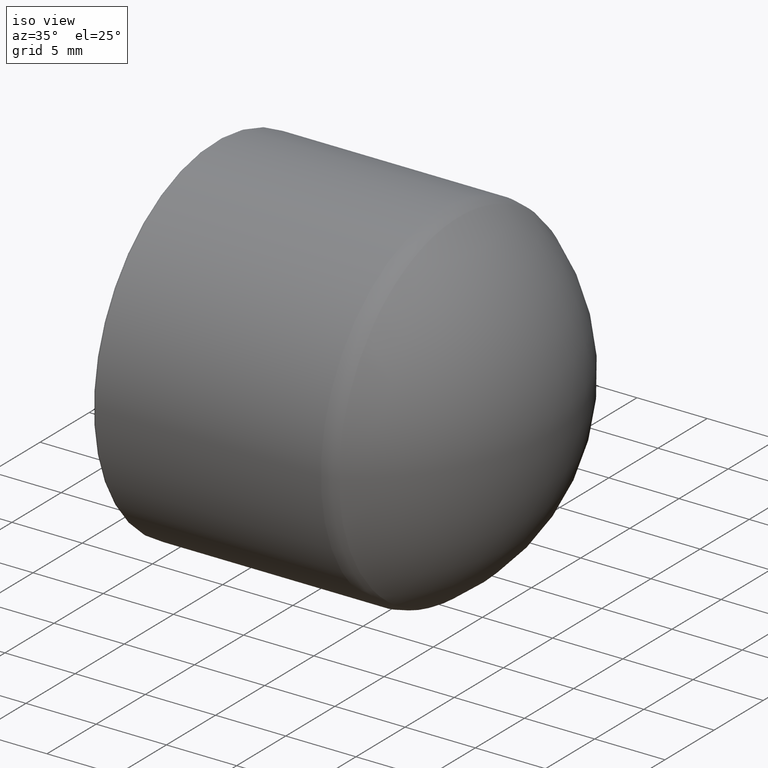
[diagram: clean part render]
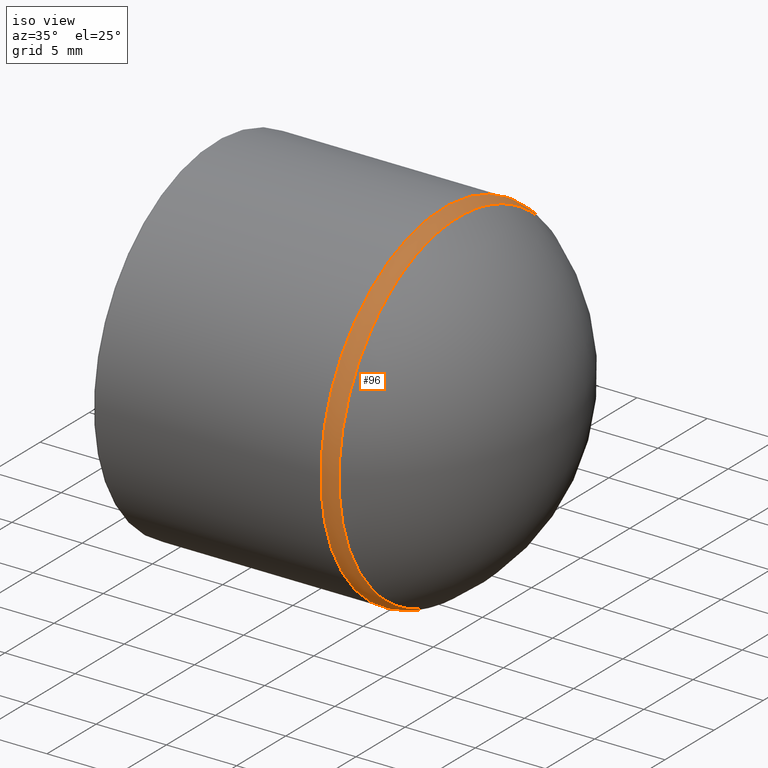
[diagram: same view with one face highlighted and labeled with its STEP entity id]
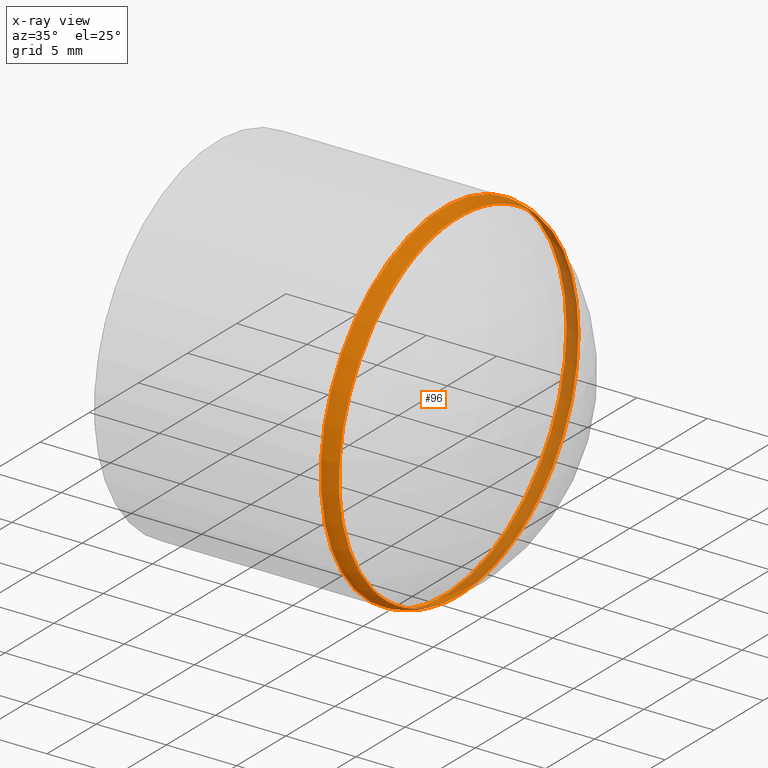
[diagram: x-ray of the same camera — body ghosted, the highlighted face saturated]
A machine part, iso view. The second image highlights one B-rep face of the part: STEP entity #96.
The next image is the same camera in x-ray: the body ghosted, the highlighted face saturated — about 33% of this face is hidden behind the body in this view.
In plain terms, the highlighted toroidal blend (fillet) surface has major radius 10.5 mm and minor (blend) radius 2 mm.
Its self-contained STEP definition (entity closure, byte-faithful):
#21=FACE_BOUND('',#38,.T.);
#28=FACE_OUTER_BOUND('',#37,.T.);
#37=EDGE_LOOP('',(#77));
#38=EDGE_LOOP('',(#78));
#53=CIRCLE('',#108,12.5);
#54=CIRCLE('',#109,12.1866529086954);
#61=VERTEX_POINT('',#162);
#62=VERTEX_POINT('',#164);
#69=EDGE_CURVE('',#61,#61,#53,.T.);
#70=EDGE_CURVE('',#62,#62,#54,.T.);
#77=ORIENTED_EDGE('',*,*,#69,.T.);
#78=ORIENTED_EDGE('',*,*,#70,.T.);
#93=TOROIDAL_SURFACE('',#107,10.5,2.);
#96=ADVANCED_FACE('',(#28,#21),#93,.T.);
#107=AXIS2_PLACEMENT_3D('',#161,#126,#127);
#108=AXIS2_PLACEMENT_3D('',#163,#128,#129);
#109=AXIS2_PLACEMENT_3D('',#165,#130,#131);
#126=DIRECTION('center_axis',(1.,2.44854618096805E-16,0.));
#127=DIRECTION('ref_axis',(0.,0.,-1.));
#128=DIRECTION('center_axis',(1.,2.44854618096805E-16,0.));
#129=DIRECTION('ref_axis',(2.44249065417534E-16,-1.,1.83697019872103E-16));
#130=DIRECTION('center_axis',(-1.,-2.44854618096805E-16,0.));
#131=DIRECTION('ref_axis',(2.44249065417534E-16,-1.,1.83697019872103E-16));
#161=CARTESIAN_POINT('Origin',(-7.75967119318311,-1.89999132656363E-15,
0.));
#162=CARTESIAN_POINT('',(-7.75967119318312,12.5,-7.65404249467096E-16));
#163=CARTESIAN_POINT('Origin',(-7.75967119318311,-1.89999132656363E-15,
0.));
#164=CARTESIAN_POINT('',(-6.68486797138421,12.1866529086954,-3.7310863692384E-15));
#165=CARTESIAN_POINT('Origin',(-6.6848679713842,-1.92092054580685E-15,0.));